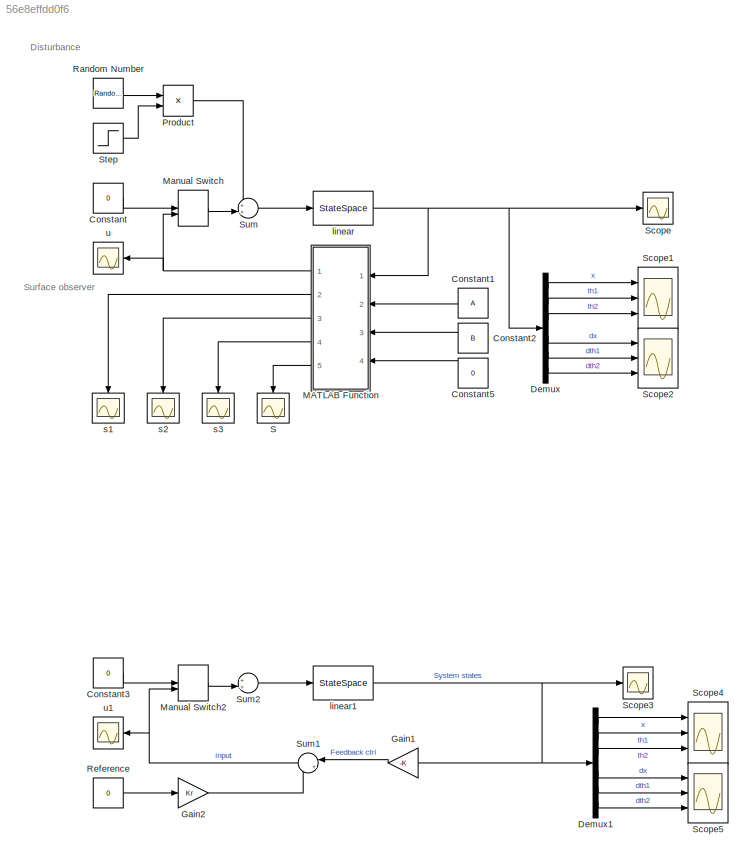
MODEL slx_56e8effdd0f6
KIND model
CONFIG AbsTol = auto
CONFIG FixedStep = auto
CONFIG MaxStep = 1e-5
CONFIG MinStep = auto
CONFIG RelTol = 1e-3
CONFIG SampleTimeConstraint = Unconstrained
CONFIG Solver = VariableStepAuto
CONFIG SolverMode = SingleTasking
CONFIG SolverName = VariableStepAuto
CONFIG StartTime = 0.0
CONFIG StopTime = 20
BLOCK [Constant] Constant
  Value = 0
BLOCK [Constant] Constant1
  Value = A
BLOCK [Constant] Constant2
  Value = B
BLOCK [Constant] Constant3
  Value = 0
BLOCK [Constant] Constant5
  Value = 0
BLOCK [Demux] Demux
  Outputs = 6
  Ports = [1, 6]
BLOCK [Demux] Demux1
  Outputs = 6
  Ports = [1, 6]
BLOCK [Gain] Gain1
  Gain = -K
  Multiplication = Matrix(K*u)
BLOCK [Gain] Gain2
  Gain = Kr
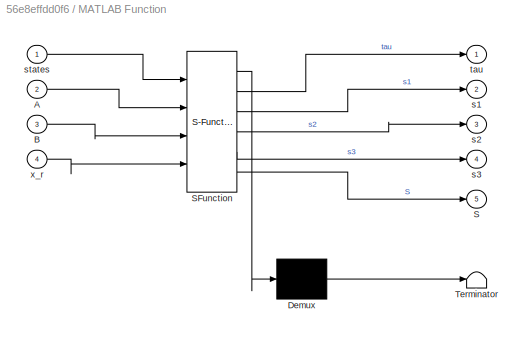
BLOCK [SubSystem] MATLAB Function
  ErrorFcn = Stateflow.Translate.translate
  PermitHierarchicalResolution = ExplicitOnly
  Ports = [4, 5]
  SFBlockType = MATLAB Function
  TreatAsAtomicUnit = on
BLOCK [Demux] MATLAB Function/ Demux 
  Outputs = 1
  Ports = [1, 1]
BLOCK [S-Function] MATLAB Function/ SFunction 
  EnableBusSupport = on
  FunctionName = sf_sfun
  PortCounts = [4 6]
  Ports = [4, 6]
  SFunctionDeploymentMode = off
  Tag = Stateflow S-Function SIM_linear 2
BLOCK [Terminator] MATLAB Function/ Terminator 
BLOCK [Inport] MATLAB Function/A
  Port = 2
BLOCK [Inport] MATLAB Function/B
  Port = 3
BLOCK [Outport] MATLAB Function/S
  Port = 5
BLOCK [Outport] MATLAB Function/s1
  Port = 2
BLOCK [Outport] MATLAB Function/s2
  Port = 3
BLOCK [Outport] MATLAB Function/s3
  Port = 4
BLOCK [Inport] MATLAB Function/states
BLOCK [Outport] MATLAB Function/tau
BLOCK [Inport] MATLAB Function/x_r
  Port = 4
BLOCK [ManualSwitch] Manual Switch
  CurrentSetting = 0
BLOCK [ManualSwitch] Manual Switch2
  CurrentSetting = 0
BLOCK [Product] Product
  Commented = on
  Ports = [2, 1]
BLOCK [RandomNumber] Random Number
  Commented = on
  SampleTime = 0.1
BLOCK [Constant] Reference
  Value = 0
BLOCK [Scope] S
  Floating = off
  NumInputPorts = 1
  Ports = [1]
  ScopeSpecificationString = Simulink.scopes.TimeScopeBlockCfg('CurrentConfiguration', extmgr.ConfigurationSet(extmgr.Configuration('Core','General UI',true,'FigureColor',[1 1 1]),extmgr.Configuration('Core','Source UI',true),extmgr.Configuration('Sources','WiredSimulink',true,'DataLoggingVariableName','ScopeData6'),extmgr.Configuration('Visuals','Time Domain',true,'SerializedDisplays',{struct('MinYLimReal','-0.37306','MaxYLi...<+1927ch>
BLOCK [Scope] Scope
  Floating = off
  NumInputPorts = 1
  Ports = [1]
  ScopeSpecificationString = Simulink.scopes.TimeScopeBlockCfg('CurrentConfiguration', extmgr.ConfigurationSet(extmgr.Configuration('Core','General UI',true,'FigureColor',[1 1 1]),extmgr.Configuration('Core','Source UI',true),extmgr.Configuration('Sources','WiredSimulink',true),extmgr.Configuration('Visuals','Time Domain',true,'SerializedDisplays',{struct('MinYLimReal','-4.8271','MaxYLimReal','1.83723','YLabelReal','','MinYLi...<+1923ch>
BLOCK [Scope] Scope1
  Floating = off
  NumInputPorts = 3
  Ports = [3]
  ScopeSpecificationString = Simulink.scopes.TimeScopeBlockCfg('CurrentConfiguration', extmgr.ConfigurationSet(extmgr.Configuration('Core','General UI',true,'FigureColor',[1 1 1]),extmgr.Configuration('Core','Source UI',true),extmgr.Configuration('Sources','WiredSimulink',true,'DataLoggingVariableName','ScopeData2'),extmgr.Configuration('Visuals','Time Domain',true,'SerializedDisplays',{struct('MinYLimReal','-0.15389','MaxYLi...<+1929ch>
BLOCK [Scope] Scope2
  Floating = off
  NumInputPorts = 3
  Ports = [3]
  ScopeSpecificationString = Simulink.scopes.TimeScopeBlockCfg('CurrentConfiguration', extmgr.ConfigurationSet(extmgr.Configuration('Core','General UI',true,'FigureColor',[1 1 1]),extmgr.Configuration('Core','Source UI',true),extmgr.Configuration('Sources','WiredSimulink',true,'DataLoggingVariableName','ScopeData3'),extmgr.Configuration('Visuals','Time Domain',true,'SerializedDisplays',{struct('MinYLimReal','-1.28469','MaxYLi...<+1930ch>
BLOCK [Scope] Scope3
  Floating = off
  NumInputPorts = 1
  Ports = [1]
  ScopeSpecificationString = Simulink.scopes.TimeScopeBlockCfg('CurrentConfiguration', extmgr.ConfigurationSet(extmgr.Configuration('Core','General UI',true,'FigureColor',[1 1 1]),extmgr.Configuration('Core','Source UI',true),extmgr.Configuration('Sources','WiredSimulink',true,'DataLoggingVariableName','ScopeData2'),extmgr.Configuration('Visuals','Time Domain',true,'SerializedDisplays',{struct('MinYLimReal','-4.8271','MaxYLim...<+1962ch>
BLOCK [Scope] Scope4
  Floating = off
  NumInputPorts = 3
  Ports = [3]
  ScopeSpecificationString = Simulink.scopes.TimeScopeBlockCfg('CurrentConfiguration', extmgr.ConfigurationSet(extmgr.Configuration('Core','General UI',true,'FigureColor',[1 1 1]),extmgr.Configuration('Core','Source UI',true),extmgr.Configuration('Sources','WiredSimulink',true,'DataLoggingVariableName','ScopeData3'),extmgr.Configuration('Visuals','Time Domain',true,'SerializedDisplays',{struct('MinYLimReal','-0.12237','MaxYLi...<+1929ch>
BLOCK [Scope] Scope5
  Floating = off
  NumInputPorts = 3
  Ports = [3]
  ScopeSpecificationString = Simulink.scopes.TimeScopeBlockCfg('CurrentConfiguration', extmgr.ConfigurationSet(extmgr.Configuration('Core','General UI',true,'FigureColor',[1 1 1]),extmgr.Configuration('Core','Source UI',true),extmgr.Configuration('Sources','WiredSimulink',true,'DataLoggingVariableName','ScopeData4'),extmgr.Configuration('Visuals','Time Domain',true,'SerializedDisplays',{struct('MinYLimReal','-2.55843','MaxYLi...<+1931ch>
BLOCK [Step] Step
  Commented = on
  SampleTime = 0
BLOCK [Sum] Sum
  Inputs = ++|
  Ports = [2, 1]
BLOCK [Sum] Sum1
  Inputs = |++
  Ports = [2, 1]
BLOCK [Sum] Sum2
  Inputs = ++|
  Ports = [2, 1]
BLOCK [StateSpace] linear
  A = A
  B = B
  C = C
  D = zeros(6, 1)
  Ports = [1, 1]
  X0 = [0; theta1_rad; theta2_rad; 0; 0; 0]
BLOCK [StateSpace] linear1
  A = A
  B = B
  C = C
  D = zeros(6, 1)
  Ports = [1, 1]
  X0 = [0; theta1_rad; theta2_rad; 0; 0; 0]
BLOCK [Scope] s1
  Floating = off
  NumInputPorts = 1
  Ports = [1]
  ScopeSpecificationString = Simulink.scopes.TimeScopeBlockCfg('CurrentConfiguration', extmgr.ConfigurationSet(extmgr.Configuration('Core','General UI',true,'FigureColor',[1 1 1]),extmgr.Configuration('Core','Source UI',true),extmgr.Configuration('Sources','WiredSimulink',true,'DataLoggingVariableName','ScopeData4'),extmgr.Configuration('Visuals','Time Domain',true,'SerializedDisplays',{struct('MinYLimReal','-1.35765','MaxYLi...<+1929ch>
BLOCK [Scope] s2
  Floating = off
  NumInputPorts = 1
  Ports = [1]
  ScopeSpecificationString = Simulink.scopes.TimeScopeBlockCfg('CurrentConfiguration', extmgr.ConfigurationSet(extmgr.Configuration('Core','General UI',true,'FigureColor',[1 1 1]),extmgr.Configuration('Core','Source UI',true),extmgr.Configuration('Sources','WiredSimulink',true,'DataLoggingVariableName','ScopeData8'),extmgr.Configuration('Visuals','Time Domain',true,'SerializedDisplays',{struct('MinYLimReal','-0.11809','MaxYLi...<+1928ch>
BLOCK [Scope] s3
  Floating = off
  NumInputPorts = 1
  Ports = [1]
  ScopeSpecificationString = Simulink.scopes.TimeScopeBlockCfg('CurrentConfiguration', extmgr.ConfigurationSet(extmgr.Configuration('Core','General UI',true,'FigureColor',[1 1 1]),extmgr.Configuration('Core','Source UI',true),extmgr.Configuration('Sources','WiredSimulink',true,'DataLoggingVariableName','ScopeData5'),extmgr.Configuration('Visuals','Time Domain',true,'SerializedDisplays',{struct('MinYLimReal','-0.27802','MaxYLi...<+1927ch>
BLOCK [Scope] u
  Floating = off
  NumInputPorts = 1
  Ports = [1]
  ScopeSpecificationString = Simulink.scopes.TimeScopeBlockCfg('CurrentConfiguration', extmgr.ConfigurationSet(extmgr.Configuration('Core','General UI',true,'FigureColor',[1 1 1]),extmgr.Configuration('Core','Source UI',true),extmgr.Configuration('Sources','WiredSimulink',true,'DataLoggingVariableName','ScopeData1'),extmgr.Configuration('Visuals','Time Domain',true,'SerializedDisplays',{struct('MinYLimReal','-1.05818','MaxYLi...<+1723ch>
BLOCK [Scope] u1
  Floating = off
  NumInputPorts = 1
  Ports = [1]
  ScopeSpecificationString = Simulink.scopes.TimeScopeBlockCfg('CurrentConfiguration', extmgr.ConfigurationSet(extmgr.Configuration('Core','General UI',true,'FigureColor',[1 1 1]),extmgr.Configuration('Core','Source UI',true),extmgr.Configuration('Sources','WiredSimulink',true,'DataLoggingVariableName','ScopeData8'),extmgr.Configuration('Visuals','Time Domain',true,'SerializedDisplays',{struct('MinYLimReal','-4.00912','MaxYLi...<+1730ch>
ANNOTATION (root): Disturbance
ANNOTATION (root): Surface observer
LINE Constant1:1 -> MATLAB Function:2
LINE Constant2:1 -> MATLAB Function:3
LINE Constant3:1 -> Manual Switch2:1
LINE Constant5:1 -> MATLAB Function:4
LINE Constant:1 -> Manual Switch:1
LINE Demux1:1 -> Scope4:1
LINE Demux1:2 -> Scope4:2
LINE Demux1:3 -> Scope4:3
LINE Demux1:4 -> Scope5:1
LINE Demux1:5 -> Scope5:2
LINE Demux1:6 -> Scope5:3
LINE Demux:1 -> Scope1:1
LINE Demux:2 -> Scope1:2
LINE Demux:3 -> Scope1:3
LINE Demux:4 -> Scope2:1
LINE Demux:5 -> Scope2:2
LINE Demux:6 -> Scope2:3
LINE Gain1:1 -> Sum1:1
LINE Gain2:1 -> Sum1:2
NET MATLAB Function:1 -> Manual Switch:2, u:1
LINE MATLAB Function:2 -> s1:1
LINE MATLAB Function:3 -> s2:1
LINE MATLAB Function:4 -> s3:1
LINE MATLAB Function:5 -> S:1
LINE Manual Switch2:1 -> Sum2:2
LINE Manual Switch:1 -> Sum:2
LINE Product:1 -> Sum:1
LINE Random Number:1 -> Product:1
LINE Reference:1 -> Gain2:1
LINE Step:1 -> Product:2
NET Sum1:1 -> Manual Switch2:2, u1:1
LINE Sum2:1 -> linear1:1
LINE Sum:1 -> linear:1
NET linear1:1 -> Demux1:1, Gain1:1, Scope3:1
NET linear:1 -> Demux:1, MATLAB Function:1, Scope:1
note: NET lines group one-source signal fan-out (src -> all destinations, sorted); 1:1 wires keep LINE
CHART MATLAB Function states=1 transitions=1
  STATE_LABEL 'eML_blk_kernel()'
  STATE_LABEL 'SCRIPT:\nfunction [tau, s1, s2, s3, S] = fcn(states, A, B, x_r)\n\nc1 = 2;       % 2\nc2 = 5;         % 5\nc3 = 1.3;       % 1.6 - 1.7？\n\nalpha = 1.5;    % 1.5\nbeta =  4.4;     % 4.4\ngamma = 2.7;    % 2.7\n\neta = 0.005;    % 0.005\nk = 10;         % 20\n\nx = states(1);\nth1 = states(2);\nth2 = states(3);\n\ndx = states(4);\ndth1 = states(5);\ndth2 = states(6);\n\ns1 = c1 * th1 + dth1;\ns2 = c2 * th2 + dth2;\ns3 = c3...<+713ch>'
